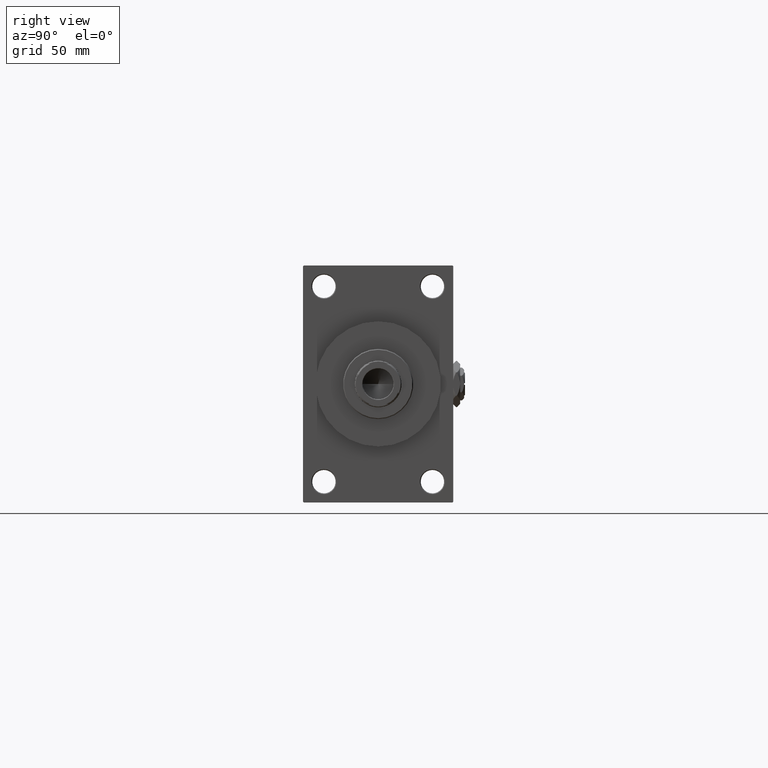
[diagram: clean part render]
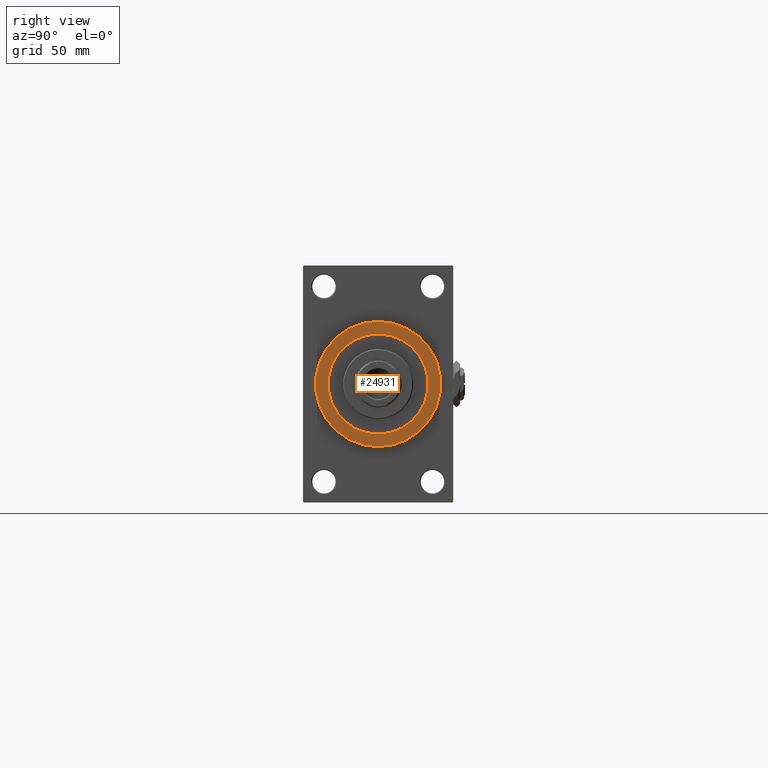
[diagram: same view with one face highlighted and labeled with its STEP entity id]
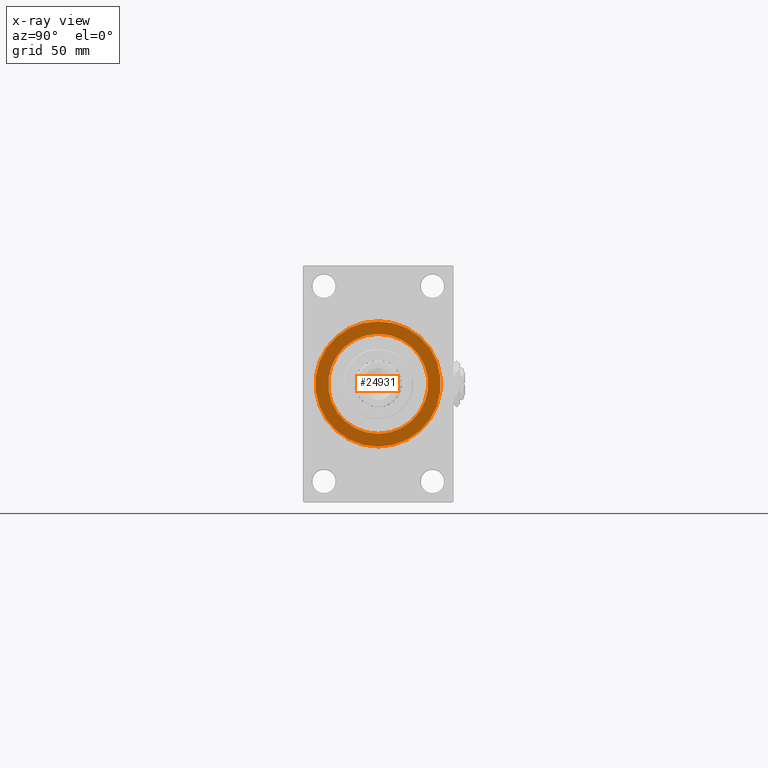
[diagram: x-ray of the same camera — body ghosted, the highlighted face saturated]
A machine part, right view. The second image highlights one B-rep face of the part: STEP entity #24931.
The next image is the same camera in x-ray: the body ghosted, the highlighted face saturated — about 0% of this face is hidden behind the body in this view.
In plain terms, the highlighted planar face has unit normal (1, 0, 0).
Its self-contained STEP definition (entity closure, byte-faithful):
#560 = CARTESIAN_POINT ( 'NONE',  ( 356.0000000000000000, 4.592425496802575156E-15, -37.50000000000000711 ) ) ;
#1162 = ORIENTED_EDGE ( 'NONE', *, *, #41306, .F. ) ;
#2945 = CARTESIAN_POINT ( 'NONE',  ( 356.0000000000000000, 0.000000000000000000, 0.000000000000000000 ) ) ;
#3434 = VERTEX_POINT ( 'NONE', #37533 ) ;
#4297 = CIRCLE ( 'NONE', #10697, 37.50000000000000711 ) ;
#5094 = CIRCLE ( 'NONE', #13854, 37.50000000000000711 ) ;
#6243 = AXIS2_PLACEMENT_3D ( 'NONE', #2945, #18153, #33352 ) ;
#6729 = ORIENTED_EDGE ( 'NONE', *, *, #11721, .T. ) ;
#7686 = FACE_OUTER_BOUND ( 'NONE', #22329, .T. ) ;
#10697 = AXIS2_PLACEMENT_3D ( 'NONE', #18068, #21798, #45463 ) ;
#10881 = ORIENTED_EDGE ( 'NONE', *, *, #26537, .F. ) ;
#10948 = FACE_BOUND ( 'NONE', #34746, .T. ) ;
#11439 = DIRECTION ( 'NONE',  ( 0.000000000000000000, 0.000000000000000000, -1.000000000000000000 ) ) ;
#11721 = EDGE_CURVE ( 'NONE', #3434, #27330, #4297, .T. ) ;
#13854 = AXIS2_PLACEMENT_3D ( 'NONE', #38945, #46174, #23745 ) ;
#18068 = CARTESIAN_POINT ( 'NONE',  ( 356.0000000000000000, 0.000000000000000000, 0.000000000000000000 ) ) ;
#18153 = DIRECTION ( 'NONE',  ( 1.000000000000000000, 0.000000000000000000, 0.000000000000000000 ) ) ;
#18656 = PLANE ( 'NONE',  #34412 ) ;
#21798 = DIRECTION ( 'NONE',  ( 1.000000000000000000, 0.000000000000000000, 0.000000000000000000 ) ) ;
#22329 = EDGE_LOOP ( 'NONE', ( #6729, #42130 ) ) ;
#23745 = DIRECTION ( 'NONE',  ( 0.000000000000000000, 0.000000000000000000, -1.000000000000000000 ) ) ;
#24931 = ADVANCED_FACE ( 'NONE', ( #10948, #7686 ), #18656, .T. ) ;
#26537 = EDGE_CURVE ( 'NONE', #46724, #30665, #41685, .T. ) ;
#26888 = CARTESIAN_POINT ( 'NONE',  ( 356.0000000000000000, 0.000000000000000000, 0.000000000000000000 ) ) ;
#27330 = VERTEX_POINT ( 'NONE', #560 ) ;
#27391 = EDGE_CURVE ( 'NONE', #27330, #3434, #5094, .T. ) ;
#30367 = CARTESIAN_POINT ( 'NONE',  ( 356.0000000000000000, 0.000000000000000000, 0.000000000000000000 ) ) ;
#30665 = VERTEX_POINT ( 'NONE', #31488 ) ;
#30855 = DIRECTION ( 'NONE',  ( 1.000000000000000000, 0.000000000000000000, 0.000000000000000000 ) ) ;
#31488 = CARTESIAN_POINT ( 'NONE',  ( 356.0000000000000000, 0.000000000000000000, -30.00000000000000000 ) ) ;
#33352 = DIRECTION ( 'NONE',  ( 0.000000000000000000, 0.000000000000000000, -1.000000000000000000 ) ) ;
#34412 = AXIS2_PLACEMENT_3D ( 'NONE', #30367, #30855, #46057 ) ;
#34746 = EDGE_LOOP ( 'NONE', ( #1162, #10881 ) ) ;
#37312 = CIRCLE ( 'NONE', #6243, 30.00000000000000000 ) ;
#37533 = CARTESIAN_POINT ( 'NONE',  ( 356.0000000000000000, 0.000000000000000000, 37.50000000000000711 ) ) ;
#37705 = AXIS2_PLACEMENT_3D ( 'NONE', #26888, #46073, #11439 ) ;
#38945 = CARTESIAN_POINT ( 'NONE',  ( 356.0000000000000000, 0.000000000000000000, 0.000000000000000000 ) ) ;
#41306 = EDGE_CURVE ( 'NONE', #30665, #46724, #37312, .T. ) ;
#41685 = CIRCLE ( 'NONE', #37705, 30.00000000000000000 ) ;
#42130 = ORIENTED_EDGE ( 'NONE', *, *, #27391, .T. ) ;
#44925 = CARTESIAN_POINT ( 'NONE',  ( 356.0000000000000000, 3.673940397442059178E-15, 30.00000000000000000 ) ) ;
#45463 = DIRECTION ( 'NONE',  ( 0.000000000000000000, 0.000000000000000000, -1.000000000000000000 ) ) ;
#46057 = DIRECTION ( 'NONE',  ( 0.000000000000000000, 0.000000000000000000, -1.000000000000000000 ) ) ;
#46073 = DIRECTION ( 'NONE',  ( 1.000000000000000000, 0.000000000000000000, 0.000000000000000000 ) ) ;
#46174 = DIRECTION ( 'NONE',  ( 1.000000000000000000, 0.000000000000000000, 0.000000000000000000 ) ) ;
#46724 = VERTEX_POINT ( 'NONE', #44925 ) ;